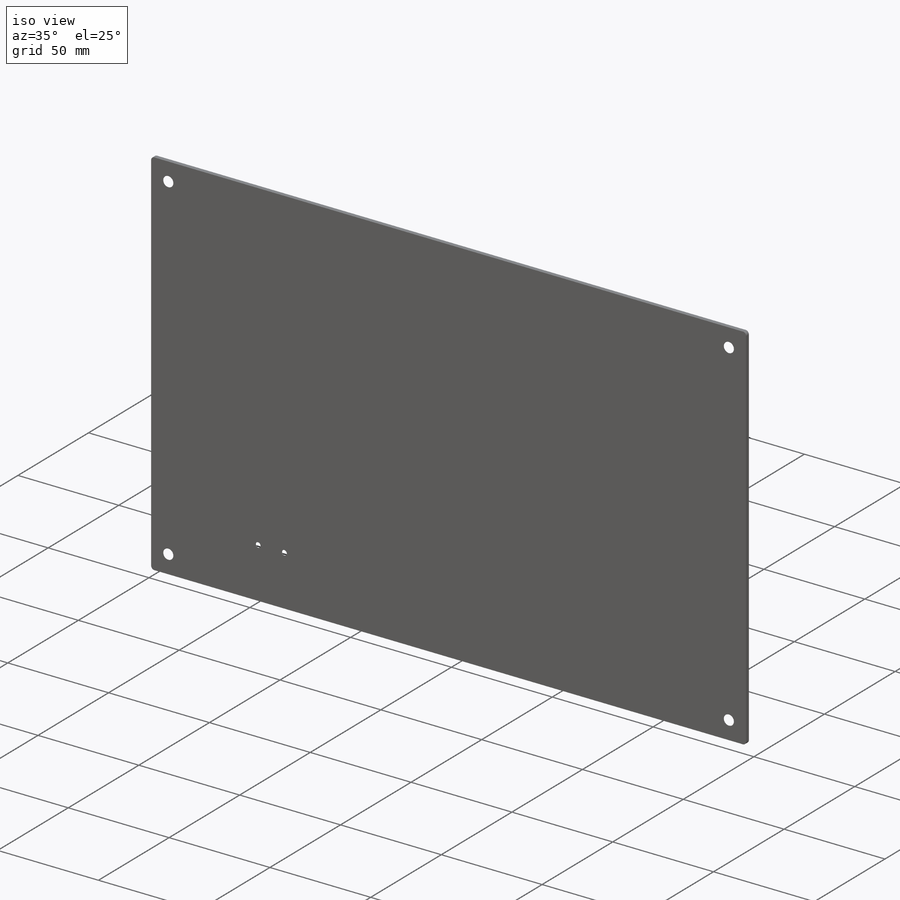
[diagram: iso view]
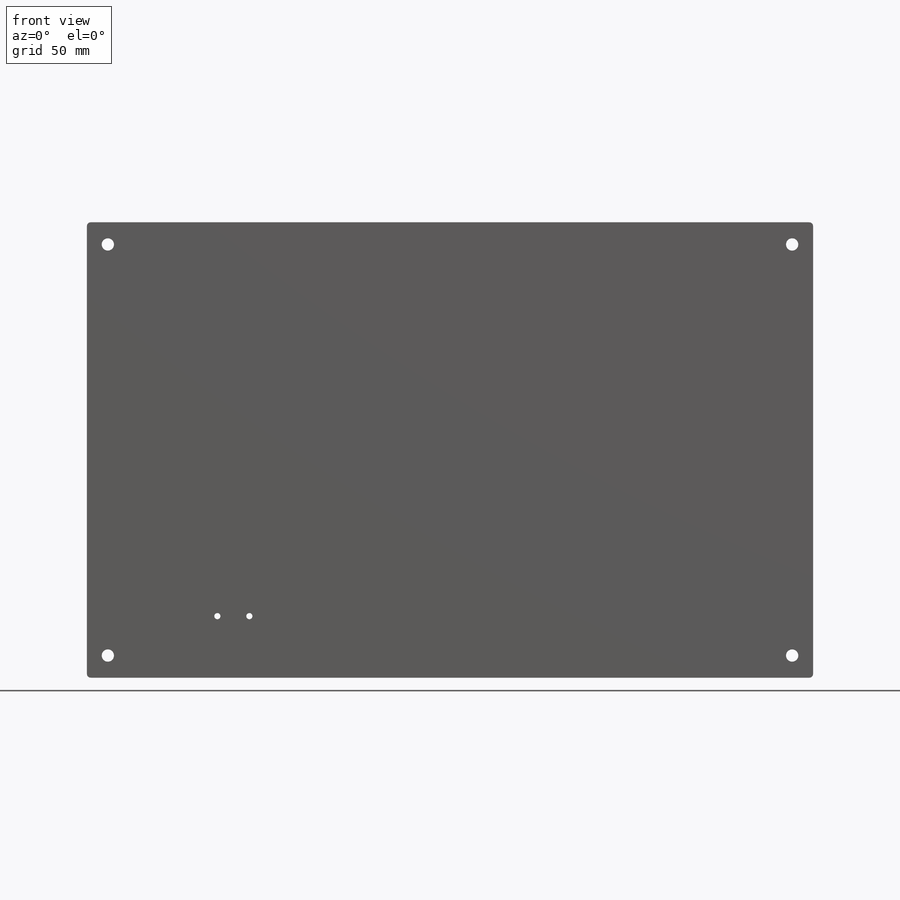
[diagram: front view]
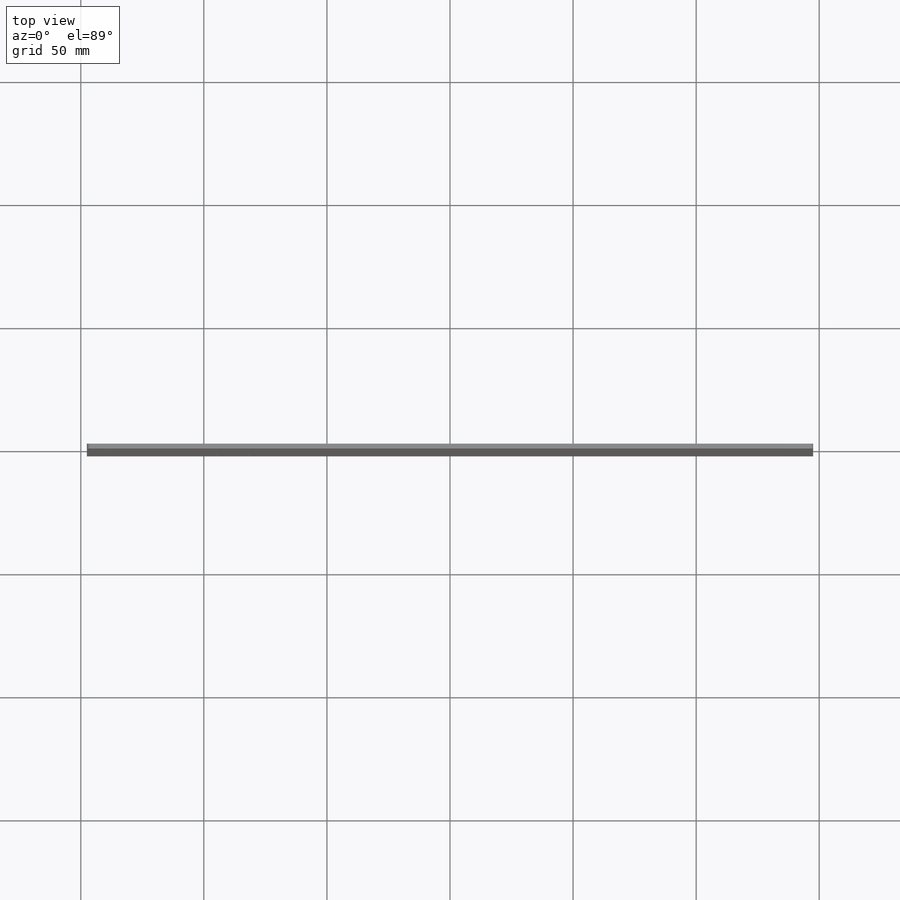
[diagram: top view]
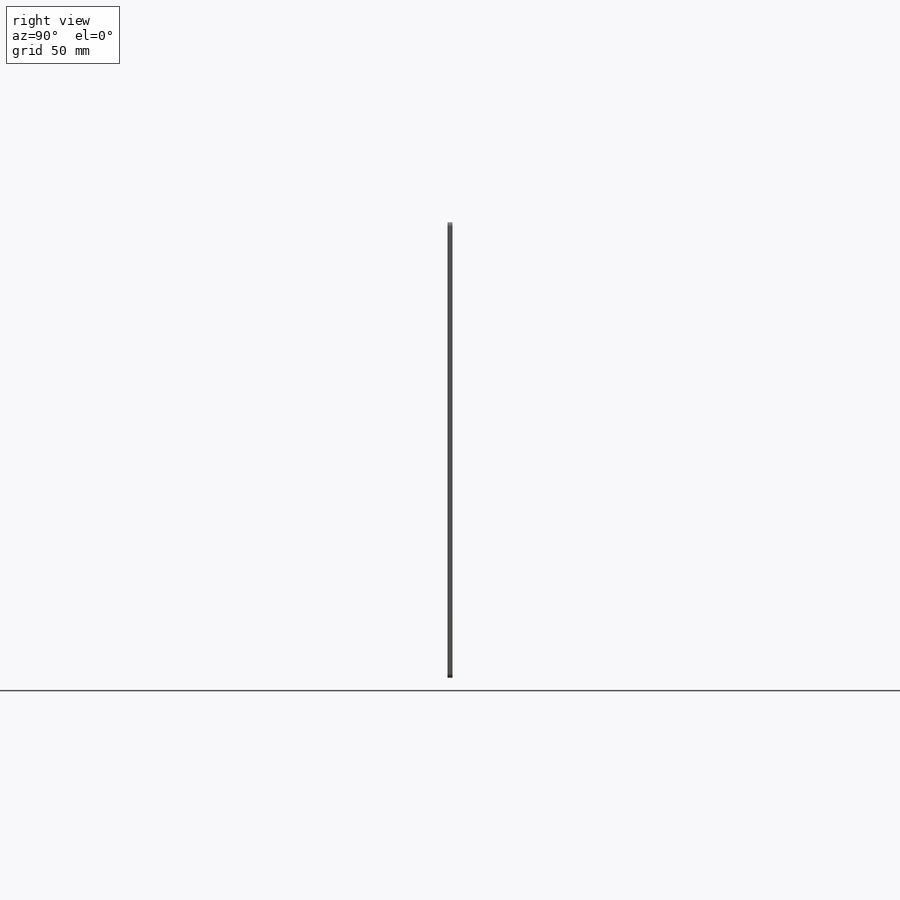
[diagram: right view]
SOLIDWORKS PART (.sldprt)
format: sldprt  version: not decoded by parser v0  size: 275,456 bytes
history: native  units: mm
features: sketch x7, sheet_metal_op x2, hole x2, mirror x2, thread x2, material x1, cut_extrude x1 + 1 further entry (+12 scaffold rows collapsed)
feature tree (30):
  scaffold x12  (default folders/planes/origin — collapsed)
  material  "7079 Alloy"
  sketch  "Sketch1"  dims[D3=1.5mm D1=295.0mm D2=185.0mm]
  sheet_metal_op  "Sheet-Metal1"
  sheet_metal_op  "Base-Flange1"
  sketch  "Sketch8"  dims[c1.D1=3.5mm c1.D2=3.5mm c1.D4=3.5mm c1.D5=3.5mm c1.D3=25.0mm c2.D4=40.0mm c2.D5=53.0mm]
  cut_extrude  "Cut-Extrude11"  [1 undecoded]
  hole  "Furo roscado de M41"  Diameter=3.3mm Depth=2mm
  sketch  "Esboço4"  dims[D1=9.0mm D2=8.5mm]
  sketch  "Esboço3"  dims[hole-wizard template sketch: 54 standard entries collapsed; hole parameters kept: c17.Thru Tap Drill Dia.=3.3mm c17.Thru Tap Drill Depth=2.0mm c17.Far C'Sink Dia.=9.0mm c17.D4=~2.963249mm c17.Far C'Sink Angle=90.0deg]
  mirror  "Espelhar1"
  mirror  "Espelhar2"
  hole  "Furo roscado de M31"  Diameter=2.5mm Depth=2mm
  sketch  "Esboço6"  dims[D1=25.0mm D2=25.0mm D3=53.0mm D4=66.0mm]
  sketch  "Esboço5"  dims[hole-wizard template sketch: 54 standard entries collapsed; hole parameters kept: c17.Thru Tap Drill Dia.=2.5mm c17.Thru Tap Drill Depth=2.0mm c17.Far C'Sink Dia.=6.0mm c17.D4=~2.963249mm c17.Far C'Sink Angle=90.0deg]
  thread  "Rosca de furo2"  Diameter=3mm  [1 undecoded]
  thread  "Rosca de furo3"  Diameter=3mm  [1 undecoded]
  "Flat-Pattern1"
  sketch  "Bend-Lines1"
decode coverage: 10 of 16 modeling features carry decoded parameters; 1 rows unclassified (native names shown)
note: ~ marks probable driven/reference dimensions
note: 3 parameter values undecoded
note: suppression state not decoded; provenance and decode notes live in map.json
